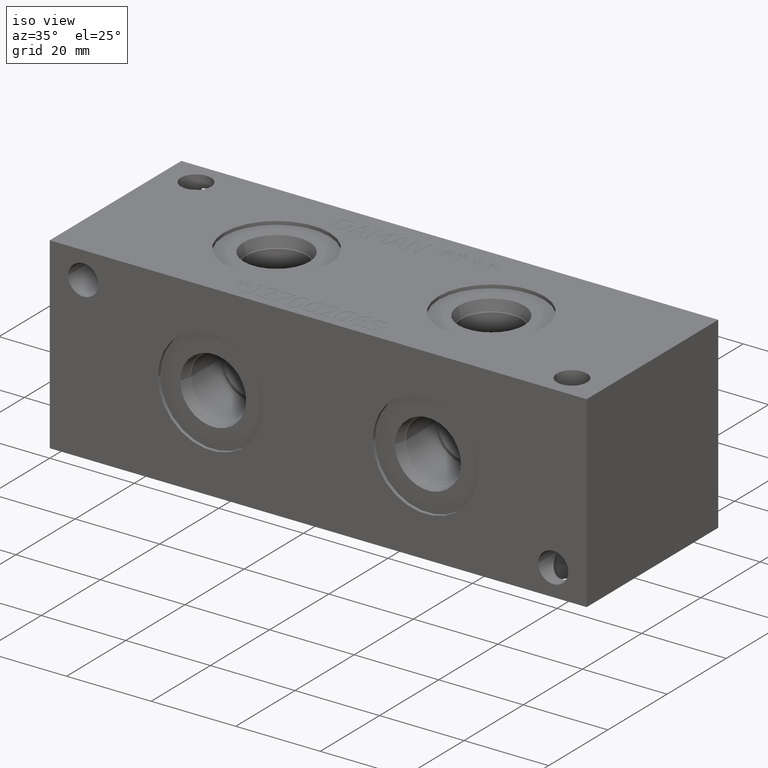
[diagram: clean part render]
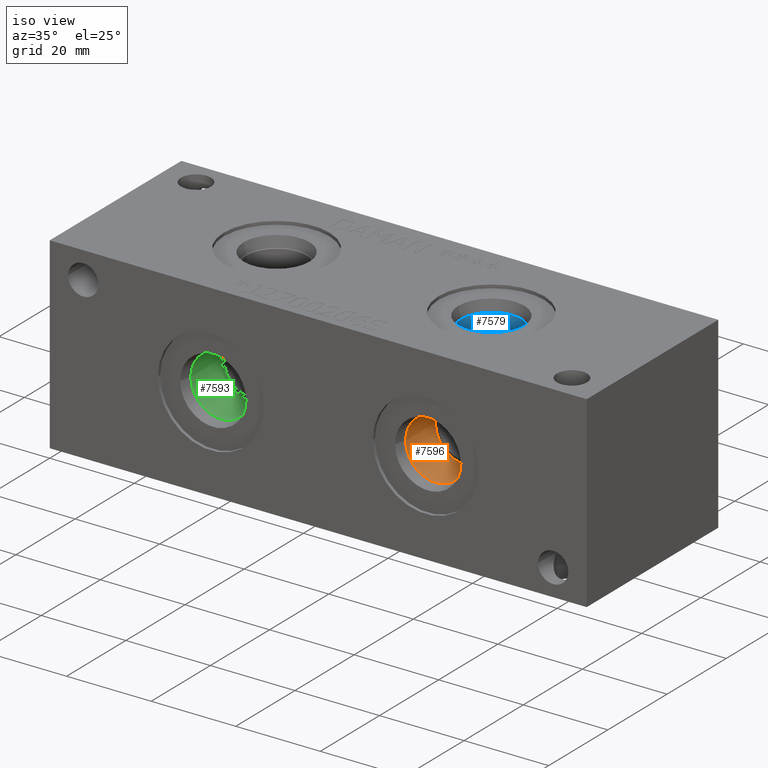
[diagram: same view with three faces highlighted in distinct colors, each labeled with its STEP entity id]
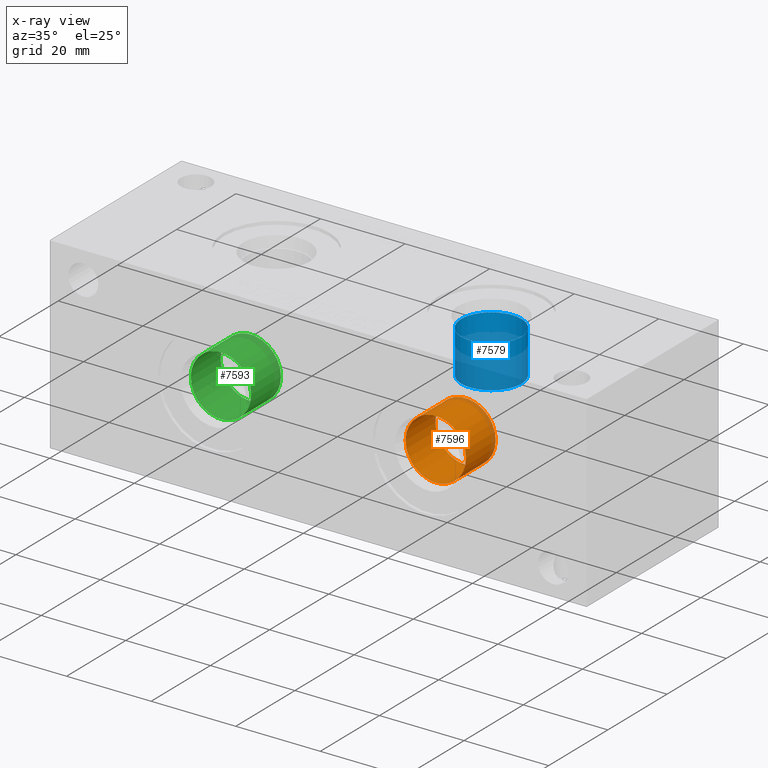
[diagram: x-ray of the same camera — body ghosted, the three highlighted faces saturated]
A machine part, iso view with three faces highlighted in distinct colors.
The next image is the same camera in x-ray (body ghosted, the three faces saturated) — at least one of them is partly hidden behind the body in this view.
Their STEP definitions:

[orange] entity #7596 — the highlighted cylindrical surface (bore or boss wall) has radius 7.1374 mm, axis along (0, -1, 0).
#91=CYLINDRICAL_SURFACE('',#8015,7.1374);
#174=CIRCLE('',#7958,7.1374);
#200=CIRCLE('',#8013,7.1374);
#201=CIRCLE('',#8014,7.1374);
#989=FACE_OUTER_BOUND('',#1419,.T.);
#1419=EDGE_LOOP('',(#6576,#6577,#6578,#6579,#6580));
#2116=LINE('',#13153,#2797);
#2797=VECTOR('',#9492,7.1374);
#3465=VERTEX_POINT('',#13040);
#3493=VERTEX_POINT('',#13148);
#3494=VERTEX_POINT('',#13149);
#4488=EDGE_CURVE('',#3465,#3465,#174,.T.);
#4537=EDGE_CURVE('',#3493,#3494,#200,.T.);
#4538=EDGE_CURVE('',#3494,#3493,#201,.T.);
#4539=EDGE_CURVE('',#3465,#3494,#2116,.T.);
#6576=ORIENTED_EDGE('',*,*,#4488,.T.);
#6577=ORIENTED_EDGE('',*,*,#4539,.T.);
#6578=ORIENTED_EDGE('',*,*,#4537,.F.);
#6579=ORIENTED_EDGE('',*,*,#4538,.F.);
#6580=ORIENTED_EDGE('',*,*,#4539,.F.);
#7596=ADVANCED_FACE('',(#989),#91,.F.);
#7958=AXIS2_PLACEMENT_3D('',#13042,#9362,#9363);
#8013=AXIS2_PLACEMENT_3D('',#13150,#9486,#9487);
#8014=AXIS2_PLACEMENT_3D('',#13151,#9488,#9489);
#8015=AXIS2_PLACEMENT_3D('',#13152,#9490,#9491);
#9362=DIRECTION('center_axis',(0.,-1.,0.));
#9363=DIRECTION('ref_axis',(1.,0.,0.));
#9486=DIRECTION('center_axis',(0.,-1.,0.));
#9487=DIRECTION('ref_axis',(1.,0.,0.));
#9488=DIRECTION('center_axis',(0.,-1.,0.));
#9489=DIRECTION('ref_axis',(1.,0.,0.));
#9490=DIRECTION('center_axis',(0.,-1.,0.));
#9491=DIRECTION('ref_axis',(1.,0.,0.));
#9492=DIRECTION('',(0.,1.,0.));
#13040=CARTESIAN_POINT('',(81.7626,3.429,22.225));
#13042=CARTESIAN_POINT('Origin',(88.9,3.429,22.225));
#13148=CARTESIAN_POINT('',(96.0374,13.4874,22.225));
#13149=CARTESIAN_POINT('',(81.7626,13.4874,22.225));
#13150=CARTESIAN_POINT('Origin',(88.9,13.4874,22.225));
#13151=CARTESIAN_POINT('Origin',(88.9,13.4874,22.225));
#13152=CARTESIAN_POINT('Origin',(88.9,6.7437,22.225));
#13153=CARTESIAN_POINT('',(81.7626,6.7437,22.225));

[blue] entity #7579 — the highlighted cylindrical surface (bore or boss wall) has radius 7.1374 mm, axis along (0, 0, 1).
#79=CYLINDRICAL_SURFACE('',#7969,7.1374);
#178=CIRCLE('',#7966,7.1374);
#179=CIRCLE('',#7967,7.1374);
#181=CIRCLE('',#7970,7.1374);
#972=FACE_OUTER_BOUND('',#1399,.T.);
#1399=EDGE_LOOP('',(#6485,#6486,#6487,#6488,#6489));
#2102=LINE('',#13060,#2783);
#2783=VECTOR('',#9388,7.1374);
#3467=VERTEX_POINT('',#13051);
#3468=VERTEX_POINT('',#13052);
#3470=VERTEX_POINT('',#13058);
#4492=EDGE_CURVE('',#3467,#3468,#178,.T.);
#4493=EDGE_CURVE('',#3468,#3467,#179,.T.);
#4495=EDGE_CURVE('',#3470,#3470,#181,.T.);
#4496=EDGE_CURVE('',#3470,#3468,#2102,.T.);
#6485=ORIENTED_EDGE('',*,*,#4495,.F.);
#6486=ORIENTED_EDGE('',*,*,#4496,.T.);
#6487=ORIENTED_EDGE('',*,*,#4492,.F.);
#6488=ORIENTED_EDGE('',*,*,#4493,.F.);
#6489=ORIENTED_EDGE('',*,*,#4496,.F.);
#7579=ADVANCED_FACE('',(#972),#79,.F.);
#7966=AXIS2_PLACEMENT_3D('',#13053,#9378,#9379);
#7967=AXIS2_PLACEMENT_3D('',#13054,#9380,#9381);
#7969=AXIS2_PLACEMENT_3D('',#13057,#9384,#9385);
#7970=AXIS2_PLACEMENT_3D('',#13059,#9386,#9387);
#9378=DIRECTION('center_axis',(0.,0.,1.));
#9379=DIRECTION('ref_axis',(1.,0.,0.));
#9380=DIRECTION('center_axis',(0.,0.,1.));
#9381=DIRECTION('ref_axis',(1.,0.,0.));
#9384=DIRECTION('center_axis',(0.,0.,1.));
#9385=DIRECTION('ref_axis',(1.,0.,0.));
#9386=DIRECTION('center_axis',(0.,0.,-1.));
#9387=DIRECTION('ref_axis',(1.,0.,0.));
#9388=DIRECTION('',(0.,0.,-1.));
#13051=CARTESIAN_POINT('',(96.0374,22.225,30.9626));
#13052=CARTESIAN_POINT('',(81.7626,22.225,30.9626));
#13053=CARTESIAN_POINT('Origin',(88.9,22.225,30.9626));
#13054=CARTESIAN_POINT('Origin',(88.9,22.225,30.9626));
#13057=CARTESIAN_POINT('Origin',(88.9,22.225,37.7063));
#13058=CARTESIAN_POINT('',(81.7626,22.225,41.021));
#13059=CARTESIAN_POINT('Origin',(88.9,22.225,41.021));
#13060=CARTESIAN_POINT('',(81.7626,22.225,37.7063));

[green] entity #7593 — the highlighted cylindrical surface (bore or boss wall) has radius 7.1374 mm, axis along (0, -1, 0).
#89=CYLINDRICAL_SURFACE('',#8009,7.1374);
#196=CIRCLE('',#8006,7.1374);
#197=CIRCLE('',#8007,7.1374);
#199=CIRCLE('',#8010,7.1374);
#986=FACE_OUTER_BOUND('',#1415,.T.);
#1415=EDGE_LOOP('',(#6560,#6561,#6562,#6563,#6564));
#2114=LINE('',#13134,#2795);
#2795=VECTOR('',#9480,7.1374);
#3489=VERTEX_POINT('',#13125);
#3490=VERTEX_POINT('',#13126);
#3492=VERTEX_POINT('',#13132);
#4530=EDGE_CURVE('',#3489,#3490,#196,.T.);
#4531=EDGE_CURVE('',#3490,#3489,#197,.T.);
#4533=EDGE_CURVE('',#3492,#3492,#199,.T.);
#4534=EDGE_CURVE('',#3492,#3490,#2114,.T.);
#6560=ORIENTED_EDGE('',*,*,#4533,.F.);
#6561=ORIENTED_EDGE('',*,*,#4534,.T.);
#6562=ORIENTED_EDGE('',*,*,#4530,.F.);
#6563=ORIENTED_EDGE('',*,*,#4531,.F.);
#6564=ORIENTED_EDGE('',*,*,#4534,.F.);
#7593=ADVANCED_FACE('',(#986),#89,.F.);
#8006=AXIS2_PLACEMENT_3D('',#13127,#9470,#9471);
#8007=AXIS2_PLACEMENT_3D('',#13128,#9472,#9473);
#8009=AXIS2_PLACEMENT_3D('',#13131,#9476,#9477);
#8010=AXIS2_PLACEMENT_3D('',#13133,#9478,#9479);
#9470=DIRECTION('center_axis',(0.,-1.,0.));
#9471=DIRECTION('ref_axis',(1.,0.,0.));
#9472=DIRECTION('center_axis',(0.,-1.,0.));
#9473=DIRECTION('ref_axis',(1.,0.,0.));
#9476=DIRECTION('center_axis',(0.,-1.,0.));
#9477=DIRECTION('ref_axis',(1.,0.,0.));
#9478=DIRECTION('center_axis',(0.,1.,0.));
#9479=DIRECTION('ref_axis',(1.,0.,0.));
#9480=DIRECTION('',(0.,1.,0.));
#13125=CARTESIAN_POINT('',(45.2374,13.4874,22.225));
#13126=CARTESIAN_POINT('',(30.9626,13.4874,22.225));
#13127=CARTESIAN_POINT('Origin',(38.1,13.4874,22.225));
#13128=CARTESIAN_POINT('Origin',(38.1,13.4874,22.225));
#13131=CARTESIAN_POINT('Origin',(38.1,6.7437,22.225));
#13132=CARTESIAN_POINT('',(30.9626,3.429,22.225));
#13133=CARTESIAN_POINT('Origin',(38.1,3.429,22.225));
#13134=CARTESIAN_POINT('',(30.9626,6.7437,22.225));